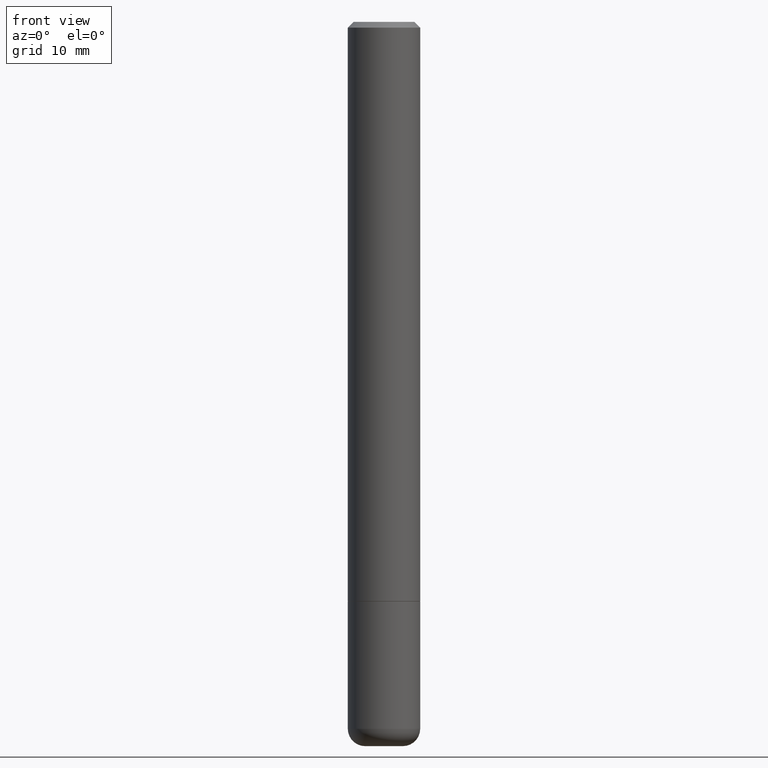
[diagram: clean part render]
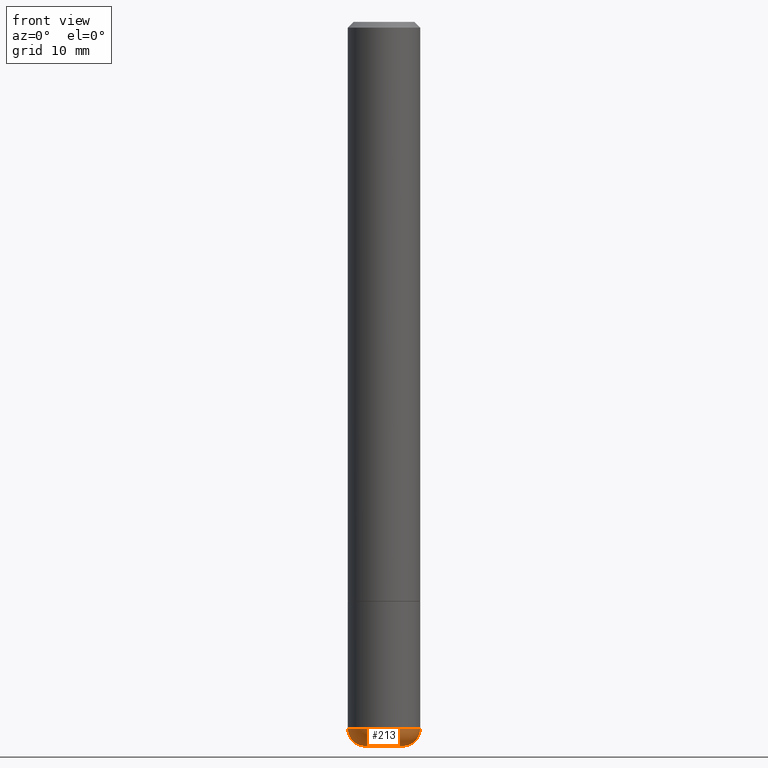
[diagram: same view with one face highlighted and labeled with its STEP entity id]
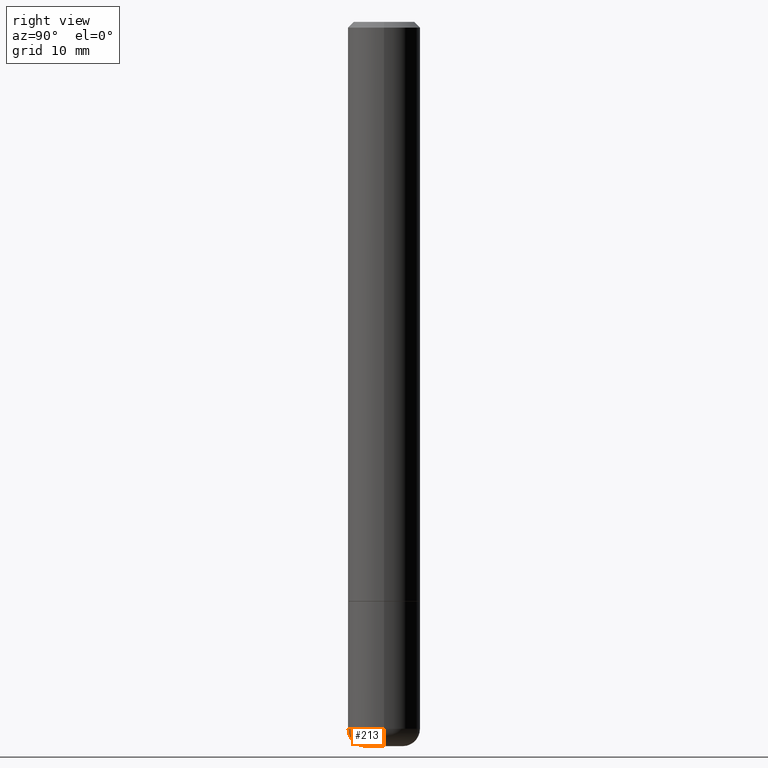
[diagram: same view with one face highlighted and labeled with its STEP entity id]
A machine part, front view. The second image highlights one B-rep face of the part: STEP entity #213.
A second angle (right view) of the same face is appended — the face is thin or edge-on in the first view.
In plain terms, the highlighted toroidal blend (fillet) surface has major radius 1.651 mm and minor (blend) radius 1.524 mm.
Its self-contained STEP definition (entity closure, byte-faithful):
#7 = EDGE_CURVE ( 'NONE', #42, #399, #375, .T. ) ;
#16 = AXIS2_PLACEMENT_3D ( 'NONE', #132, #261, #398 ) ;
#23 = EDGE_CURVE ( 'NONE', #399, #104, #310, .T. ) ;
#41 = AXIS2_PLACEMENT_3D ( 'NONE', #257, #309, #222 ) ;
#42 = VERTEX_POINT ( 'NONE', #357 ) ;
#48 = AXIS2_PLACEMENT_3D ( 'NONE', #308, #387, #278 ) ;
#72 = EDGE_LOOP ( 'NONE', ( #379, #411, #128, #372 ) ) ;
#89 = DIRECTION ( 'NONE',  ( 1.000000000000000000, -6.982962677686265133E-15, 4.883557194083112340E-29 ) ) ;
#95 = CARTESIAN_POINT ( 'NONE',  ( 0.06500000000000000222, -9.182595921157474803E-15, -2.500000000000000444 ) ) ;
#104 = VERTEX_POINT ( 'NONE', #164 ) ;
#128 = ORIENTED_EDGE ( 'NONE', *, *, #332, .T. ) ;
#132 = CARTESIAN_POINT ( 'NONE',  ( -0.06500000000000000222, -8.057361688533210306E-15, -2.440000000000000391 ) ) ;
#154 = FACE_OUTER_BOUND ( 'NONE', #72, .T. ) ;
#164 = CARTESIAN_POINT ( 'NONE',  ( 0.1250000000000001110, -9.392084801488058387E-15, -2.440000000000000391 ) ) ;
#170 = CIRCLE ( 'NONE', #48, 0.06000000000000024064 ) ;
#172 = CARTESIAN_POINT ( 'NONE',  ( -0.1250000000000001110, -7.631036047077149816E-15, -2.440000000000000391 ) ) ;
#179 = DIRECTION ( 'NONE',  ( 1.000000000000000000, -6.982962677686262766E-15, 0.000000000000000000 ) ) ;
#202 = CIRCLE ( 'NONE', #41, 0.06500000000000000222 ) ;
#211 = CARTESIAN_POINT ( 'NONE',  ( 5.966943887091733341E-29, -8.519214466777275048E-15, -2.440000000000000391 ) ) ;
#213 = ADVANCED_FACE ( 'NONE', ( #154 ), #330, .T. ) ;
#222 = DIRECTION ( 'NONE',  ( 1.000000000000000000, -6.982962677686273810E-15, 0.000000000000000000 ) ) ;
#257 = CARTESIAN_POINT ( 'NONE',  ( 6.113672015462842613E-29, -8.728703347107866520E-15, -2.500000000000000444 ) ) ;
#261 = DIRECTION ( 'NONE',  ( 7.105427357601001859E-15, 1.000000000000000000, -3.491481338843145583E-15 ) ) ;
#278 = DIRECTION ( 'NONE',  ( 1.000000000000000000, -6.982962677686272233E-15, 0.000000000000000000 ) ) ;
#292 = EDGE_CURVE ( 'NONE', #42, #324, #202, .T. ) ;
#300 = AXIS2_PLACEMENT_3D ( 'NONE', #378, #301, #89 ) ;
#301 = DIRECTION ( 'NONE',  ( -2.445468806185136597E-29, 3.491481338843145583E-15, 1.000000000000000000 ) ) ;
#308 = CARTESIAN_POINT ( 'NONE',  ( 0.06500000000000000222, -8.973107040826881753E-15, -2.440000000000000391 ) ) ;
#309 = DIRECTION ( 'NONE',  ( -2.445468806185136597E-29, 3.491481338843145583E-15, 1.000000000000000000 ) ) ;
#310 = CIRCLE ( 'NONE', #414, 0.1250000000000000000 ) ;
#324 = VERTEX_POINT ( 'NONE', #95 ) ;
#330 = TOROIDAL_SURFACE ( 'NONE', #300, 0.06500000000000000222, 0.06000000000000023370 ) ;
#332 = EDGE_CURVE ( 'NONE', #324, #104, #170, .T. ) ;
#340 = DIRECTION ( 'NONE',  ( -2.445468806185136597E-29, 3.491481338843145583E-15, 1.000000000000000000 ) ) ;
#357 = CARTESIAN_POINT ( 'NONE',  ( -0.06500000000000000222, -7.948943307970475008E-15, -2.500000000000000444 ) ) ;
#372 = ORIENTED_EDGE ( 'NONE', *, *, #23, .F. ) ;
#375 = CIRCLE ( 'NONE', #16, 0.06000000000000024064 ) ;
#378 = CARTESIAN_POINT ( 'NONE',  ( 5.966943887091733341E-29, -8.519214466777275048E-15, -2.440000000000000391 ) ) ;
#379 = ORIENTED_EDGE ( 'NONE', *, *, #7, .F. ) ;
#387 = DIRECTION ( 'NONE',  ( -6.982962677686266711E-15, -1.000000000000000000, 3.491481338843145583E-15 ) ) ;
#398 = DIRECTION ( 'NONE',  ( -1.000000000000000000, 7.105427357600994759E-15, 0.000000000000000000 ) ) ;
#399 = VERTEX_POINT ( 'NONE', #172 ) ;
#411 = ORIENTED_EDGE ( 'NONE', *, *, #292, .T. ) ;
#414 = AXIS2_PLACEMENT_3D ( 'NONE', #211, #340, #179 ) ;